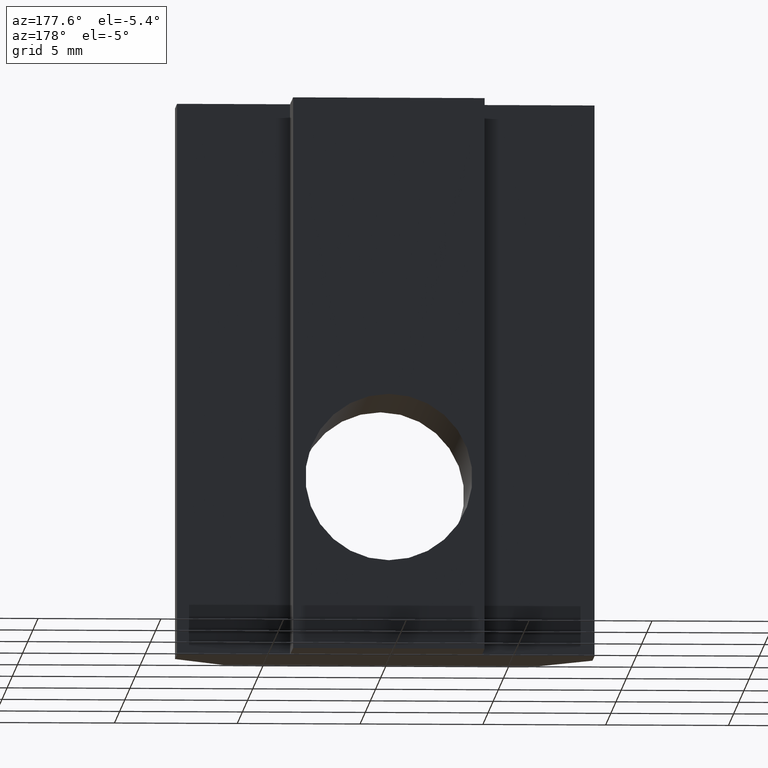
[diagram: clean part render]
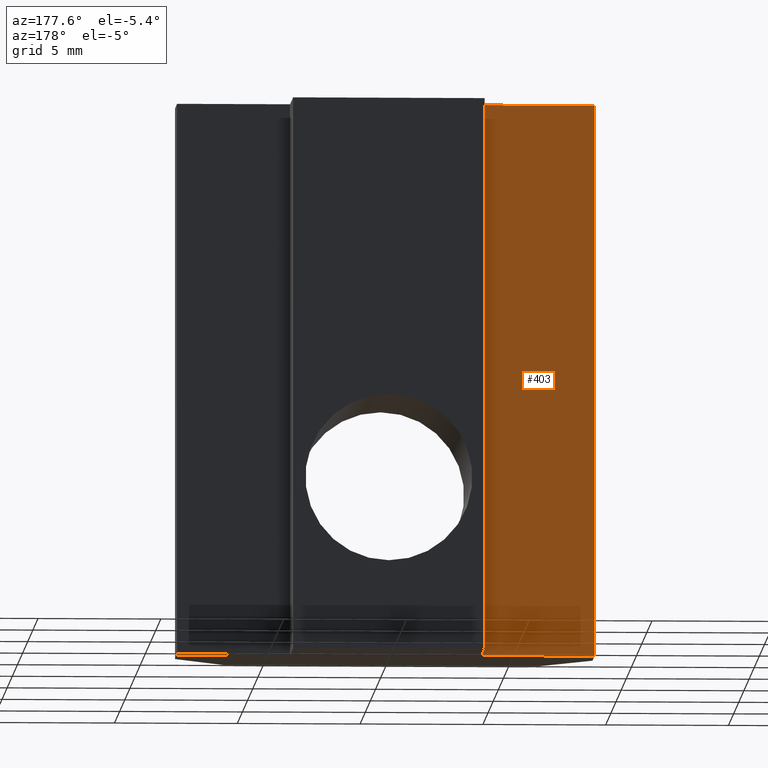
[diagram: same view with one face highlighted and labeled with its STEP entity id]
A machine part, auxiliary view. The second image highlights one B-rep face of the part: STEP entity #403.
In plain terms, the highlighted planar face has unit normal (0, -1, 0).
Its self-contained STEP definition (entity closure, byte-faithful):
#16 = DIRECTION ( 'NONE',  ( -1.000000000000000000, 0.0000000000000000000, 0.0000000000000000000 ) ) ;
#41 = DIRECTION ( 'NONE',  ( -1.000000000000000000, 0.0000000000000000000, 0.0000000000000000000 ) ) ;
#46 = DIRECTION ( 'NONE',  ( -0.0000000000000000000, -0.0000000000000000000, -1.000000000000000000 ) ) ;
#99 = CARTESIAN_POINT ( 'NONE',  ( -8.500000000000001800, 5.000000000000000000, 22.50000000000000000 ) ) ;
#113 = CARTESIAN_POINT ( 'NONE',  ( -3.900000000000002600, 5.000000000000000000, 22.50000000000000000 ) ) ;
#126 = CARTESIAN_POINT ( 'NONE',  ( -3.900000000000002600, 5.000000000000000000, 0.0000000000000000000 ) ) ;
#150 = LINE ( 'NONE', #126, #151 ) ;
#151 = VECTOR ( 'NONE', #41, 1000.000000000000000 ) ;
#233 = EDGE_CURVE ( 'NONE', #511, #517, #380, .T. ) ;
#296 = AXIS2_PLACEMENT_3D ( 'NONE', #436, #444, #427 ) ;
#299 = EDGE_CURVE ( 'NONE', #517, #513, #150, .T. ) ;
#317 = EDGE_CURVE ( 'NONE', #508, #513, #525, .T. ) ;
#318 = EDGE_CURVE ( 'NONE', #511, #508, #527, .T. ) ;
#330 = ORIENTED_EDGE ( 'NONE', *, *, #233, .T. ) ;
#332 = ORIENTED_EDGE ( 'NONE', *, *, #318, .F. ) ;
#333 = ORIENTED_EDGE ( 'NONE', *, *, #317, .F. ) ;
#338 = ORIENTED_EDGE ( 'NONE', *, *, #299, .T. ) ;
#375 = EDGE_LOOP ( 'NONE', ( #338, #333, #332, #330 ) ) ;
#377 = VECTOR ( 'NONE', #507, 1000.000000000000000 ) ;
#380 = LINE ( 'NONE', #488, #377 ) ;
#403 = ADVANCED_FACE ( 'NONE', ( #547 ), #426, .F. ) ;
#426 = PLANE ( 'NONE',  #296 ) ;
#427 = DIRECTION ( 'NONE',  ( 0.0000000000000000000, -0.0000000000000000000, -1.000000000000000000 ) ) ;
#436 = CARTESIAN_POINT ( 'NONE',  ( -3.900000000000002600, 5.000000000000000000, 22.50000000000000000 ) ) ;
#444 = DIRECTION ( 'NONE',  ( 0.0000000000000000000, -1.000000000000000000, 0.0000000000000000000 ) ) ;
#450 = CARTESIAN_POINT ( 'NONE',  ( -3.900000000000002600, 5.000000000000000000, 22.50000000000000000 ) ) ;
#451 = CARTESIAN_POINT ( 'NONE',  ( -8.500000000000001800, 5.000000000000000000, 22.50000000000000000 ) ) ;
#455 = CARTESIAN_POINT ( 'NONE',  ( -3.900000000000002600, 5.000000000000000000, 0.0000000000000000000 ) ) ;
#464 = CARTESIAN_POINT ( 'NONE',  ( -8.500000000000001800, 5.000000000000000000, 0.0000000000000000000 ) ) ;
#488 = CARTESIAN_POINT ( 'NONE',  ( -3.900000000000002600, 5.000000000000000000, 22.50000000000000000 ) ) ;
#507 = DIRECTION ( 'NONE',  ( -0.0000000000000000000, -0.0000000000000000000, -1.000000000000000000 ) ) ;
#508 = VERTEX_POINT ( 'NONE', #451 ) ;
#511 = VERTEX_POINT ( 'NONE', #450 ) ;
#513 = VERTEX_POINT ( 'NONE', #464 ) ;
#517 = VERTEX_POINT ( 'NONE', #455 ) ;
#525 = LINE ( 'NONE', #99, #526 ) ;
#526 = VECTOR ( 'NONE', #46, 1000.000000000000000 ) ;
#527 = LINE ( 'NONE', #113, #528 ) ;
#528 = VECTOR ( 'NONE', #16, 1000.000000000000000 ) ;
#547 = FACE_OUTER_BOUND ( 'NONE', #375, .T. ) ;